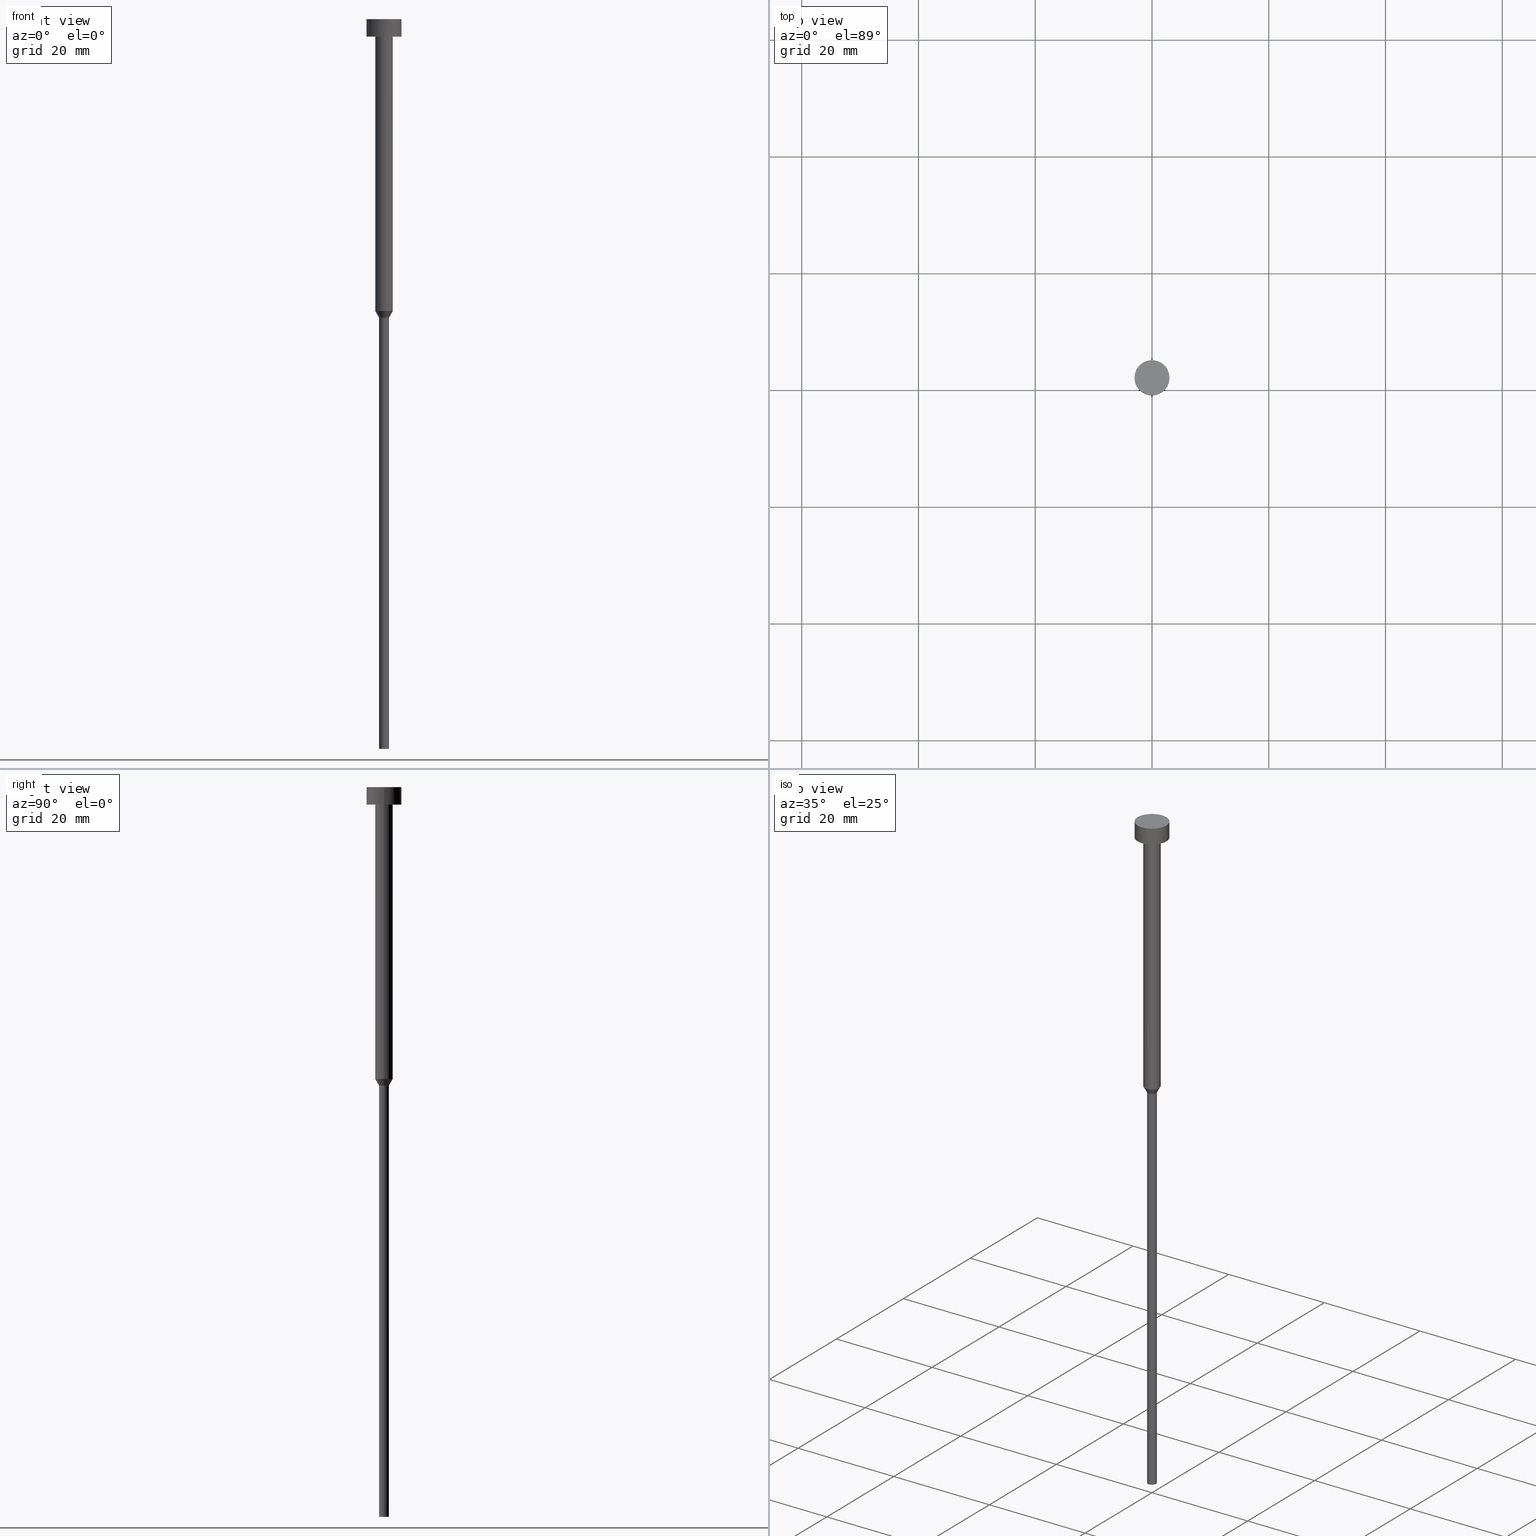
[diagram: canonical four-view strip — front | top / right | iso, engineering-drawing reading convention]
A machine part, canonical four-view strip (front | top / right | iso — engineering-drawing reading convention). The complete STEP part file that produces these views, byte-faithful:
ISO-10303-21;
HEADER;
FILE_DESCRIPTION (( 'STEP AP203' ),
    '1' );
FILE_NAME ('d2de.STEP',
    '2023-02-13T10:04:29',
    ( '' ),
    ( '' ),
    'SwSTEP 2.0',
    'SolidWorks 2019',
    '' );
FILE_SCHEMA (( 'CONFIG_CONTROL_DESIGN' ));
ENDSEC;

DATA;
#1 = CYLINDRICAL_SURFACE ( 'NONE', #160, 0.8499999999999998668 ) ;
#2 = AXIS2_PLACEMENT_3D ( 'NONE', #157, #208, #318 ) ;
#3 = DIRECTION ( 'NONE',  ( -0.000000000000000000, -0.000000000000000000, 1.000000000000000000 ) ) ;
#4 = AXIS2_PLACEMENT_3D ( 'NONE', #237, #82, #186 ) ;
#5 = DIRECTION ( 'NONE',  ( 0.5000000000000011102, 0.000000000000000000, 0.8660254037844379305 ) ) ;
#6 = COORDINATED_UNIVERSAL_TIME_OFFSET ( 1, 0, .AHEAD. ) ;
#7 = MECHANICAL_CONTEXT ( 'NONE', #323, 'mechanical' ) ;
#8 = EDGE_LOOP ( 'NONE', ( #153, #11, #180, #253 ) ) ;
#9 = CONICAL_SURFACE ( 'NONE', #209, 1.500000000000000000, 0.5235987755983001479 ) ;
#10 = PERSON_AND_ORGANIZATION_ROLE ( 'classification_officer' ) ;
#11 = ORIENTED_EDGE ( 'NONE', *, *, #79, .T. ) ;
#12 = ADVANCED_FACE ( 'NONE', ( #98 ), #227, .T. ) ;
#13 = CALENDAR_DATE ( 2023, 13, 2 ) ;
#14 = ORIENTED_EDGE ( 'NONE', *, *, #345, .T. ) ;
#15 = APPROVAL_STATUS ( 'not_yet_approved' ) ;
#16 = VERTEX_POINT ( 'NONE', #311 ) ;
#17 = EDGE_LOOP ( 'NONE', ( #65, #251 ) ) ;
#18 = EDGE_CURVE ( 'NONE', #199, #284, #347, .T. ) ;
#19 = CYLINDRICAL_SURFACE ( 'NONE', #165, 1.500000000000000000 ) ;
#20 = FACE_OUTER_BOUND ( 'NONE', #148, .T. ) ;
#21 = VECTOR ( 'NONE', #5, 1000.000000000000114 ) ;
#22 = CARTESIAN_POINT ( 'NONE',  ( 0.8499999999999998668, 0.000000000000000000, 0.000000000000000000 ) ) ;
#23 = PERSON ( 'NEUR�EN�', 'NEUR�EN�', 'NEUR�EN�', ('NEUR�EN�'), ('NEUR�EN�'), ('NEUR�EN�') ) ;
#24 = PLANE ( 'NONE',  #328 ) ;
#25 = DESIGN_CONTEXT ( 'detailed design', #85, 'design' ) ;
#26 = DIRECTION ( 'NONE',  ( -0.000000000000000000, -0.000000000000000000, 1.000000000000000000 ) ) ;
#27 = CLOSED_SHELL ( 'NONE', ( #104, #167, #112, #235, #12, #316, #215, #41, #306, #67, #181 ) ) ;
#28 = LOCAL_TIME ( 11, 4, 29.00000000000000000, #175 ) ;
#29 = CARTESIAN_POINT ( 'NONE',  ( 0.000000000000000000, 0.000000000000000000, -50.00000000000000000 ) ) ;
#30 = EDGE_CURVE ( 'NONE', #71, #230, #346, .T. ) ;
#31 = FACE_OUTER_BOUND ( 'NONE', #45, .T. ) ;
#32 = LINE ( 'NONE', #166, #194 ) ;
#33 = CIRCLE ( 'NONE', #242, 3.000000000000000000 ) ;
#34 = CARTESIAN_POINT ( 'NONE',  ( 1.500000000000000000, 0.000000000000000000, -50.00000000000000000 ) ) ;
#35 = AXIS2_PLACEMENT_3D ( 'NONE', #161, #26, #297 ) ;
#36 = DATE_AND_TIME ( #126, #287 ) ;
#37 = ORIENTED_EDGE ( 'NONE', *, *, #79, .F. ) ;
#38 = PERSON_AND_ORGANIZATION ( #23, #147 ) ;
#39 = VERTEX_POINT ( 'NONE', #207 ) ;
#40 =( GEOMETRIC_REPRESENTATION_CONTEXT ( 3 ) GLOBAL_UNCERTAINTY_ASSIGNED_CONTEXT ( ( #220 ) ) GLOBAL_UNIT_ASSIGNED_CONTEXT ( ( #168, #243, #324 ) ) REPRESENTATION_CONTEXT ( 'NONE', 'WORKASPACE' ) );
#41 = ADVANCED_FACE ( 'NONE', ( #53 ), #213, .T. ) ;
#42 = ORIENTED_EDGE ( 'NONE', *, *, #224, .T. ) ;
#43 = ORIENTED_EDGE ( 'NONE', *, *, #30, .T. ) ;
#44 = CC_DESIGN_PERSON_AND_ORGANIZATION_ASSIGNMENT ( #38, #143, ( #331 ) ) ;
#45 = EDGE_LOOP ( 'NONE', ( #74, #94, #43, #264 ) ) ;
#46 = AXIS2_PLACEMENT_3D ( 'NONE', #163, #133, #238 ) ;
#47 = CC_DESIGN_SECURITY_CLASSIFICATION ( #351, ( #88 ) ) ;
#48 = CARTESIAN_POINT ( 'NONE',  ( 3.000000000000000000, 0.000000000000000000, -3.000000000000000888 ) ) ;
#49 = CARTESIAN_POINT ( 'NONE',  ( 0.000000000000000000, 0.000000000000000000, -3.000000000000000888 ) ) ;
#50 = FACE_OUTER_BOUND ( 'NONE', #8, .T. ) ;
#51 = CIRCLE ( 'NONE', #247, 0.8499999999999998668 ) ;
#52 = VECTOR ( 'NONE', #137, 1000.000000000000114 ) ;
#53 = FACE_OUTER_BOUND ( 'NONE', #201, .T. ) ;
#54 = CARTESIAN_POINT ( 'NONE',  ( 0.000000000000000000, 0.000000000000000000, -50.00000000000000000 ) ) ;
#55 = EDGE_CURVE ( 'NONE', #279, #101, #241, .T. ) ;
#56 = DIRECTION ( 'NONE',  ( 1.000000000000000000, 0.000000000000000000, 0.000000000000000000 ) ) ;
#57 = AXIS2_PLACEMENT_3D ( 'NONE', #54, #185, #210 ) ;
#58 = AXIS2_PLACEMENT_3D ( 'NONE', #164, #354, #190 ) ;
#59 = CARTESIAN_POINT ( 'NONE',  ( -1.500000000000000000, 1.836970198721029934E-16, -3.000000000000000888 ) ) ;
#60 = CARTESIAN_POINT ( 'NONE',  ( -3.000000000000000000, 3.673940397442059868E-16, -3.673940397442059868E-16 ) ) ;
#61 = ORIENTED_EDGE ( 'NONE', *, *, #228, .T. ) ;
#62 = DIRECTION ( 'NONE',  ( -0.000000000000000000, -0.000000000000000000, 1.000000000000000000 ) ) ;
#63 = AXIS2_PLACEMENT_3D ( 'NONE', #78, #236, #182 ) ;
#64 = PERSON_AND_ORGANIZATION_ROLE ( 'design_owner' ) ;
#65 = ORIENTED_EDGE ( 'NONE', *, *, #228, .F. ) ;
#66 = APPROVAL_DATE_TIME ( #308, #263 ) ;
#67 = ADVANCED_FACE ( 'NONE', ( #110 ), #266, .T. ) ;
#68 = ORIENTED_EDGE ( 'NONE', *, *, #162, .T. ) ;
#69 = ADVANCED_BREP_SHAPE_REPRESENTATION ( 'd2de', ( #250, #107 ), #40 ) ;
#70 = COORDINATED_UNIVERSAL_TIME_OFFSET ( 1, 0, .AHEAD. ) ;
#71 = VERTEX_POINT ( 'NONE', #136 ) ;
#72 = LOCAL_TIME ( 11, 4, 29.00000000000000000, #290 ) ;
#73 = EDGE_LOOP ( 'NONE', ( #61, #152, #205, #232 ) ) ;
#74 = ORIENTED_EDGE ( 'NONE', *, *, #55, .F. ) ;
#75 = DIRECTION ( 'NONE',  ( 0.000000000000000000, -0.000000000000000000, 1.000000000000000000 ) ) ;
#76 = VECTOR ( 'NONE', #319, 1000.000000000000000 ) ;
#77 = LINE ( 'NONE', #294, #274 ) ;
#78 = CARTESIAN_POINT ( 'NONE',  ( 0.000000000000000000, 0.000000000000000000, -51.12583302491977122 ) ) ;
#79 = EDGE_CURVE ( 'NONE', #16, #313, #77, .T. ) ;
#80 = DIRECTION ( 'NONE',  ( -0.000000000000000000, -0.000000000000000000, 1.000000000000000000 ) ) ;
#81 = CIRCLE ( 'NONE', #176, 0.8499999999999998668 ) ;
#82 = DIRECTION ( 'NONE',  ( -0.000000000000000000, -0.000000000000000000, 1.000000000000000000 ) ) ;
#83 = PRODUCT_RELATED_PRODUCT_CATEGORY ( 'detail', '', ( #268 ) ) ;
#84 = CARTESIAN_POINT ( 'NONE',  ( -0.8499999999999998668, 1.040949779275250017E-16, -125.0000000000000000 ) ) ;
#85 = APPLICATION_CONTEXT ( 'configuration controlled 3d designs of mechanical parts and assemblies' ) ;
#86 = DIRECTION ( 'NONE',  ( -0.000000000000000000, -0.000000000000000000, 1.000000000000000000 ) ) ;
#87 = AXIS2_PLACEMENT_3D ( 'NONE', #335, #96, #337 ) ;
#88 = PRODUCT_DEFINITION_FORMATION_WITH_SPECIFIED_SOURCE ( 'LIBOVOLN�', '', #268, .NOT_KNOWN. ) ;
#89 = CARTESIAN_POINT ( 'NONE',  ( 0.000000000000000000, -3.000000000000000000, -3.000000000000000888 ) ) ;
#90 = ORIENTED_EDGE ( 'NONE', *, *, #18, .T. ) ;
#91 = APPROVAL ( #97, 'NEUR�EN�' ) ;
#92 = CARTESIAN_POINT ( 'NONE',  ( 1.500000000000000000, 0.000000000000000000, -3.000000000000000888 ) ) ;
#93 = ORIENTED_EDGE ( 'NONE', *, *, #95, .T. ) ;
#94 = ORIENTED_EDGE ( 'NONE', *, *, #119, .T. ) ;
#95 = EDGE_CURVE ( 'NONE', #170, #39, #225, .T. ) ;
#96 = DIRECTION ( 'NONE',  ( 0.000000000000000000, 0.000000000000000000, -1.000000000000000000 ) ) ;
#97 = APPROVAL_STATUS ( 'not_yet_approved' ) ;
#98 = FACE_OUTER_BOUND ( 'NONE', #17, .T. ) ;
#99 = SHAPE_DEFINITION_REPRESENTATION ( #211, #69 ) ;
#100 = VECTOR ( 'NONE', #183, 1000.000000000000000 ) ;
#101 = VERTEX_POINT ( 'NONE', #349 ) ;
#102 = APPROVAL_DATE_TIME ( #342, #91 ) ;
#103 = ORIENTED_EDGE ( 'NONE', *, *, #224, .F. ) ;
#104 = ADVANCED_FACE ( 'NONE', ( #20 ), #111, .T. ) ;
#105 = DIRECTION ( 'NONE',  ( -0.000000000000000000, -0.000000000000000000, 1.000000000000000000 ) ) ;
#106 = FACE_OUTER_BOUND ( 'NONE', #179, .T. ) ;
#107 = AXIS2_PLACEMENT_3D ( 'NONE', #252, #198, #151 ) ;
#108 = EDGE_CURVE ( 'NONE', #39, #170, #33, .T. ) ;
#109 = DIRECTION ( 'NONE',  ( 1.000000000000000000, 0.000000000000000000, 0.000000000000000000 ) ) ;
#110 = FACE_OUTER_BOUND ( 'NONE', #223, .T. ) ;
#111 = CYLINDRICAL_SURFACE ( 'NONE', #46, 3.000000000000000000 ) ;
#112 = ADVANCED_FACE ( 'NONE', ( #106 ), #120, .T. ) ;
#113 = DIRECTION ( 'NONE',  ( 1.000000000000000000, 0.000000000000000000, 0.000000000000000000 ) ) ;
#114 = CYLINDRICAL_SURFACE ( 'NONE', #353, 0.8499999999999998668 ) ;
#115 = CIRCLE ( 'NONE', #312, 0.8499999999999998668 ) ;
#116 = EDGE_CURVE ( 'NONE', #39, #284, #184, .T. ) ;
#117 = CARTESIAN_POINT ( 'NONE',  ( 1.500000000000000000, 0.000000000000000000, -50.00000000000000000 ) ) ;
#118 = CARTESIAN_POINT ( 'NONE',  ( 3.000000000000000000, 0.000000000000000000, -3.673940397442059868E-16 ) ) ;
#119 = EDGE_CURVE ( 'NONE', #279, #71, #51, .T. ) ;
#120 = CONICAL_SURFACE ( 'NONE', #4, 1.500000000000000000, 0.5235987755983001479 ) ;
#121 = APPLICATION_PROTOCOL_DEFINITION ( 'international standard', 'config_control_design', 1994, #85 ) ;
#122 = ORIENTED_EDGE ( 'NONE', *, *, #322, .T. ) ;
#123 = ORIENTED_EDGE ( 'NONE', *, *, #187, .T. ) ;
#124 = PERSON_AND_ORGANIZATION ( #23, #147 ) ;
#125 = ORIENTED_EDGE ( 'NONE', *, *, #345, .F. ) ;
#126 = CALENDAR_DATE ( 2023, 13, 2 ) ;
#127 = CC_DESIGN_DATE_AND_TIME_ASSIGNMENT ( #258, #229, ( #331 ) ) ;
#128 = DIRECTION ( 'NONE',  ( -0.000000000000000000, -0.000000000000000000, 1.000000000000000000 ) ) ;
#129 = CIRCLE ( 'NONE', #195, 1.500000000000000000 ) ;
#130 = ORIENTED_EDGE ( 'NONE', *, *, #322, .F. ) ;
#131 = CARTESIAN_POINT ( 'NONE',  ( 0.000000000000000000, 0.000000000000000000, -51.12583302491977122 ) ) ;
#132 = VECTOR ( 'NONE', #240, 1000.000000000000000 ) ;
#133 = DIRECTION ( 'NONE',  ( -0.000000000000000000, -0.000000000000000000, 1.000000000000000000 ) ) ;
#134 = CC_DESIGN_APPROVAL ( #326, ( #88 ) ) ;
#135 = CARTESIAN_POINT ( 'NONE',  ( 0.000000000000000000, 0.000000000000000000, 0.000000000000000000 ) ) ;
#136 = CARTESIAN_POINT ( 'NONE',  ( 0.8499999999999998668, 0.000000000000000000, -125.0000000000000000 ) ) ;
#137 = DIRECTION ( 'NONE',  ( -0.5000000000000011102, 6.123233995736779594E-17, 0.8660254037844379305 ) ) ;
#138 = DIRECTION ( 'NONE',  ( 1.000000000000000000, 0.000000000000000000, 0.000000000000000000 ) ) ;
#139 = CARTESIAN_POINT ( 'NONE',  ( -1.500000000000000000, 1.836970198721029934E-16, -50.00000000000000000 ) ) ;
#140 = CIRCLE ( 'NONE', #63, 0.8499999999999998668 ) ;
#141 = AXIS2_PLACEMENT_3D ( 'NONE', #29, #192, #138 ) ;
#142 = DIRECTION ( 'NONE',  ( -0.000000000000000000, -0.000000000000000000, 1.000000000000000000 ) ) ;
#143 = PERSON_AND_ORGANIZATION_ROLE ( 'creator' ) ;
#144 = CC_DESIGN_PERSON_AND_ORGANIZATION_ASSIGNMENT ( #256, #10, ( #351 ) ) ;
#145 = PERSON_AND_ORGANIZATION_ROLE ( 'design_supplier' ) ;
#146 = ORIENTED_EDGE ( 'NONE', *, *, #108, .T. ) ;
#147 = ORGANIZATION ( 'NEUR�EN�', 'NEUR�EN�', '' ) ;
#148 = EDGE_LOOP ( 'NONE', ( #93, #314, #261, #103 ) ) ;
#149 = ORIENTED_EDGE ( 'NONE', *, *, #116, .F. ) ;
#150 = EDGE_CURVE ( 'NONE', #197, #16, #296, .T. ) ;
#151 = DIRECTION ( 'NONE',  ( 1.000000000000000000, 0.000000000000000000, 0.000000000000000000 ) ) ;
#152 = ORIENTED_EDGE ( 'NONE', *, *, #55, .T. ) ;
#153 = ORIENTED_EDGE ( 'NONE', *, *, #150, .T. ) ;
#154 = AXIS2_PLACEMENT_3D ( 'NONE', #89, #300, #278 ) ;
#155 = DIRECTION ( 'NONE',  ( 1.000000000000000000, 0.000000000000000000, 0.000000000000000000 ) ) ;
#156 = EDGE_CURVE ( 'NONE', #230, #101, #140, .T. ) ;
#157 = CARTESIAN_POINT ( 'NONE',  ( 0.000000000000000000, 0.000000000000000000, 0.000000000000000000 ) ) ;
#158 = AXIS2_PLACEMENT_3D ( 'NONE', #49, #320, #159 ) ;
#159 = DIRECTION ( 'NONE',  ( 1.000000000000000000, 0.000000000000000000, 0.000000000000000000 ) ) ;
#160 = AXIS2_PLACEMENT_3D ( 'NONE', #248, #62, #246 ) ;
#161 = CARTESIAN_POINT ( 'NONE',  ( 0.000000000000000000, 0.000000000000000000, -3.000000000000000888 ) ) ;
#162 = EDGE_CURVE ( 'NONE', #332, #313, #302, .T. ) ;
#163 = CARTESIAN_POINT ( 'NONE',  ( 0.000000000000000000, 0.000000000000000000, 0.000000000000000000 ) ) ;
#164 = CARTESIAN_POINT ( 'NONE',  ( 0.000000000000000000, 0.000000000000000000, -3.673940397442059868E-16 ) ) ;
#165 = AXIS2_PLACEMENT_3D ( 'NONE', #273, #344, #269 ) ;
#166 = CARTESIAN_POINT ( 'NONE',  ( 3.000000000000000000, 0.000000000000000000, 0.000000000000000000 ) ) ;
#167 = ADVANCED_FACE ( 'NONE', ( #50 ), #19, .T. ) ;
#168 =( LENGTH_UNIT ( ) NAMED_UNIT ( * ) SI_UNIT ( .MILLI., .METRE. ) );
#169 = DIRECTION ( 'NONE',  ( -0.000000000000000000, -0.000000000000000000, 1.000000000000000000 ) ) ;
#170 = VERTEX_POINT ( 'NONE', #48 ) ;
#171 = PERSON_AND_ORGANIZATION ( #23, #147 ) ;
#172 = EDGE_LOOP ( 'NONE', ( #174, #292 ) ) ;
#173 = APPROVAL_DATE_TIME ( #36, #326 ) ;
#174 = ORIENTED_EDGE ( 'NONE', *, *, #95, .F. ) ;
#175 = COORDINATED_UNIVERSAL_TIME_OFFSET ( 1, 0, .AHEAD. ) ;
#176 = AXIS2_PLACEMENT_3D ( 'NONE', #276, #304, #244 ) ;
#177 = CARTESIAN_POINT ( 'NONE',  ( 0.000000000000000000, 0.000000000000000000, -3.673940397442059868E-16 ) ) ;
#178 = PERSON_AND_ORGANIZATION_ROLE ( 'creator' ) ;
#179 = EDGE_LOOP ( 'NONE', ( #281, #257, #307, #130 ) ) ;
#180 = ORIENTED_EDGE ( 'NONE', *, *, #162, .F. ) ;
#181 = ADVANCED_FACE ( 'NONE', ( #315 ), #24, .T. ) ;
#182 = DIRECTION ( 'NONE',  ( 1.000000000000000000, 0.000000000000000000, 0.000000000000000000 ) ) ;
#183 = DIRECTION ( 'NONE',  ( -0.000000000000000000, -0.000000000000000000, 1.000000000000000000 ) ) ;
#184 = LINE ( 'NONE', #212, #76 ) ;
#185 = DIRECTION ( 'NONE',  ( -0.000000000000000000, -0.000000000000000000, 1.000000000000000000 ) ) ;
#186 = DIRECTION ( 'NONE',  ( 1.000000000000000000, 0.000000000000000000, 0.000000000000000000 ) ) ;
#187 = EDGE_CURVE ( 'NONE', #101, #230, #115, .T. ) ;
#188 = LINE ( 'NONE', #34, #21 ) ;
#189 = VECTOR ( 'NONE', #169, 1000.000000000000000 ) ;
#190 = DIRECTION ( 'NONE',  ( 1.000000000000000000, 0.000000000000000000, 0.000000000000000000 ) ) ;
#191 = ORIENTED_EDGE ( 'NONE', *, *, #283, .F. ) ;
#192 = DIRECTION ( 'NONE',  ( -0.000000000000000000, -0.000000000000000000, 1.000000000000000000 ) ) ;
#193 = AXIS2_PLACEMENT_3D ( 'NONE', #177, #128, #234 ) ;
#194 = VECTOR ( 'NONE', #214, 1000.000000000000000 ) ;
#195 = AXIS2_PLACEMENT_3D ( 'NONE', #305, #325, #327 ) ;
#196 = APPLICATION_PROTOCOL_DEFINITION ( 'international standard', 'config_control_design', 1994, #323 ) ;
#197 = VERTEX_POINT ( 'NONE', #117 ) ;
#198 = DIRECTION ( 'NONE',  ( 0.000000000000000000, 0.000000000000000000, 1.000000000000000000 ) ) ;
#199 = VERTEX_POINT ( 'NONE', #118 ) ;
#200 = APPROVAL_ROLE ( '' ) ;
#201 = EDGE_LOOP ( 'NONE', ( #37, #14, #289, #309 ) ) ;
#202 = DATE_TIME_ROLE ( 'classification_date' ) ;
#203 = EDGE_LOOP ( 'NONE', ( #191, #123, #122, #125 ) ) ;
#204 = DATE_AND_TIME ( #336, #72 ) ;
#205 = ORIENTED_EDGE ( 'NONE', *, *, #156, .F. ) ;
#206 = CC_DESIGN_PERSON_AND_ORGANIZATION_ASSIGNMENT ( #124, #145, ( #88 ) ) ;
#207 = CARTESIAN_POINT ( 'NONE',  ( -3.000000000000000000, 3.673940397442059868E-16, -3.000000000000000888 ) ) ;
#208 = DIRECTION ( 'NONE',  ( -0.000000000000000000, -0.000000000000000000, 1.000000000000000000 ) ) ;
#209 = AXIS2_PLACEMENT_3D ( 'NONE', #245, #142, #113 ) ;
#210 = DIRECTION ( 'NONE',  ( 1.000000000000000000, 0.000000000000000000, 0.000000000000000000 ) ) ;
#211 = PRODUCT_DEFINITION_SHAPE ( 'NONE', 'NONE',  #331 ) ;
#212 = CARTESIAN_POINT ( 'NONE',  ( -3.000000000000000000, 3.673940397442059868E-16, 0.000000000000000000 ) ) ;
#213 = CYLINDRICAL_SURFACE ( 'NONE', #218, 1.500000000000000000 ) ;
#214 = DIRECTION ( 'NONE',  ( -0.000000000000000000, -0.000000000000000000, 1.000000000000000000 ) ) ;
#215 = ADVANCED_FACE ( 'NONE', ( #352 ), #9, .T. ) ;
#216 = LINE ( 'NONE', #275, #189 ) ;
#217 = LINE ( 'NONE', #139, #52 ) ;
#218 = AXIS2_PLACEMENT_3D ( 'NONE', #135, #105, #317 ) ;
#219 = APPROVAL_PERSON_ORGANIZATION ( #249, #326, #310 ) ;
#220 = UNCERTAINTY_MEASURE_WITH_UNIT (LENGTH_MEASURE( 1.000000000000000082E-05 ), #168, 'distance_accuracy_value', 'NONE');
#221 = FACE_OUTER_BOUND ( 'NONE', #172, .T. ) ;
#222 = FACE_OUTER_BOUND ( 'NONE', #73, .T. ) ;
#223 = EDGE_LOOP ( 'NONE', ( #149, #146, #42, #286 ) ) ;
#224 = EDGE_CURVE ( 'NONE', #170, #199, #32, .T. ) ;
#225 = CIRCLE ( 'NONE', #158, 3.000000000000000000 ) ;
#226 = APPROVAL_STATUS ( 'not_yet_approved' ) ;
#227 = PLANE ( 'NONE',  #87 ) ;
#228 = EDGE_CURVE ( 'NONE', #71, #279, #81, .T. ) ;
#229 = DATE_TIME_ROLE ( 'creation_date' ) ;
#230 = VERTEX_POINT ( 'NONE', #330 ) ;
#231 = CALENDAR_DATE ( 2023, 13, 2 ) ;
#232 = ORIENTED_EDGE ( 'NONE', *, *, #30, .F. ) ;
#233 = SECURITY_CLASSIFICATION_LEVEL ( 'unclassified' ) ;
#234 = DIRECTION ( 'NONE',  ( 1.000000000000000000, 0.000000000000000000, 0.000000000000000000 ) ) ;
#235 = ADVANCED_FACE ( 'NONE', ( #222 ), #1, .T. ) ;
#236 = DIRECTION ( 'NONE',  ( -0.000000000000000000, -0.000000000000000000, 1.000000000000000000 ) ) ;
#237 = CARTESIAN_POINT ( 'NONE',  ( 0.000000000000000000, 0.000000000000000000, -50.00000000000000000 ) ) ;
#238 = DIRECTION ( 'NONE',  ( 1.000000000000000000, 0.000000000000000000, 0.000000000000000000 ) ) ;
#239 = LOCAL_TIME ( 11, 4, 29.00000000000000000, #334 ) ;
#240 = DIRECTION ( 'NONE',  ( -0.000000000000000000, -0.000000000000000000, 1.000000000000000000 ) ) ;
#241 = LINE ( 'NONE', #265, #132 ) ;
#242 = AXIS2_PLACEMENT_3D ( 'NONE', #348, #293, #109 ) ;
#243 =( NAMED_UNIT ( * ) PLANE_ANGLE_UNIT ( ) SI_UNIT ( $, .RADIAN. ) );
#244 = DIRECTION ( 'NONE',  ( 1.000000000000000000, 0.000000000000000000, 0.000000000000000000 ) ) ;
#245 = CARTESIAN_POINT ( 'NONE',  ( 0.000000000000000000, 0.000000000000000000, -50.00000000000000000 ) ) ;
#246 = DIRECTION ( 'NONE',  ( 1.000000000000000000, 0.000000000000000000, 0.000000000000000000 ) ) ;
#247 = AXIS2_PLACEMENT_3D ( 'NONE', #295, #80, #299 ) ;
#248 = CARTESIAN_POINT ( 'NONE',  ( 0.000000000000000000, 0.000000000000000000, 0.000000000000000000 ) ) ;
#249 = PERSON_AND_ORGANIZATION ( #23, #147 ) ;
#250 = MANIFOLD_SOLID_BREP ( 'Rotovat1', #27 ) ;
#251 = ORIENTED_EDGE ( 'NONE', *, *, #119, .F. ) ;
#252 = CARTESIAN_POINT ( 'NONE',  ( 0.000000000000000000, 0.000000000000000000, 0.000000000000000000 ) ) ;
#253 = ORIENTED_EDGE ( 'NONE', *, *, #303, .F. ) ;
#254 = CC_DESIGN_PERSON_AND_ORGANIZATION_ASSIGNMENT ( #260, #64, ( #268 ) ) ;
#255 = CIRCLE ( 'NONE', #141, 1.500000000000000000 ) ;
#256 = PERSON_AND_ORGANIZATION ( #23, #147 ) ;
#257 = ORIENTED_EDGE ( 'NONE', *, *, #283, .T. ) ;
#258 = DATE_AND_TIME ( #13, #28 ) ;
#259 = EDGE_LOOP ( 'NONE', ( #90, #291 ) ) ;
#260 = PERSON_AND_ORGANIZATION ( #23, #147 ) ;
#261 = ORIENTED_EDGE ( 'NONE', *, *, #18, .F. ) ;
#262 = APPROVAL_PERSON_ORGANIZATION ( #171, #263, #282 ) ;
#263 = APPROVAL ( #226, 'NEUR�EN�' ) ;
#264 = ORIENTED_EDGE ( 'NONE', *, *, #187, .F. ) ;
#265 = CARTESIAN_POINT ( 'NONE',  ( -0.8499999999999998668, 1.040949779275250017E-16, 0.000000000000000000 ) ) ;
#266 = CYLINDRICAL_SURFACE ( 'NONE', #2, 3.000000000000000000 ) ;
#267 = CC_DESIGN_PERSON_AND_ORGANIZATION_ASSIGNMENT ( #285, #178, ( #88 ) ) ;
#268 = PRODUCT ( 'd2de', 'd2de', '', ( #7 ) ) ;
#269 = DIRECTION ( 'NONE',  ( 1.000000000000000000, 0.000000000000000000, 0.000000000000000000 ) ) ;
#270 = APPROVAL_PERSON_ORGANIZATION ( #288, #91, #200 ) ;
#271 = CARTESIAN_POINT ( 'NONE',  ( 0.000000000000000000, 0.000000000000000000, -1.836970198721029934E-16 ) ) ;
#272 = EDGE_CURVE ( 'NONE', #284, #199, #333, .T. ) ;
#273 = CARTESIAN_POINT ( 'NONE',  ( 0.000000000000000000, 0.000000000000000000, 0.000000000000000000 ) ) ;
#274 = VECTOR ( 'NONE', #350, 1000.000000000000000 ) ;
#275 = CARTESIAN_POINT ( 'NONE',  ( 1.500000000000000000, 0.000000000000000000, 0.000000000000000000 ) ) ;
#276 = CARTESIAN_POINT ( 'NONE',  ( 0.000000000000000000, 0.000000000000000000, -125.0000000000000000 ) ) ;
#277 = DIRECTION ( 'NONE',  ( 1.000000000000000000, 0.000000000000000000, 0.000000000000000000 ) ) ;
#278 = DIRECTION ( 'NONE',  ( -1.000000000000000000, 0.000000000000000000, -0.000000000000000000 ) ) ;
#279 = VERTEX_POINT ( 'NONE', #84 ) ;
#280 = FACE_BOUND ( 'NONE', #340, .T. ) ;
#281 = ORIENTED_EDGE ( 'NONE', *, *, #156, .T. ) ;
#282 = APPROVAL_ROLE ( '' ) ;
#283 = EDGE_CURVE ( 'NONE', #101, #16, #217, .T. ) ;
#284 = VERTEX_POINT ( 'NONE', #60 ) ;
#285 = PERSON_AND_ORGANIZATION ( #23, #147 ) ;
#286 = ORIENTED_EDGE ( 'NONE', *, *, #272, .F. ) ;
#287 = LOCAL_TIME ( 11, 4, 29.00000000000000000, #6 ) ;
#288 = PERSON_AND_ORGANIZATION ( #23, #147 ) ;
#289 = ORIENTED_EDGE ( 'NONE', *, *, #303, .T. ) ;
#290 = COORDINATED_UNIVERSAL_TIME_OFFSET ( 1, 0, .AHEAD. ) ;
#291 = ORIENTED_EDGE ( 'NONE', *, *, #272, .T. ) ;
#292 = ORIENTED_EDGE ( 'NONE', *, *, #108, .F. ) ;
#293 = DIRECTION ( 'NONE',  ( -0.000000000000000000, -0.000000000000000000, 1.000000000000000000 ) ) ;
#294 = CARTESIAN_POINT ( 'NONE',  ( -1.500000000000000000, 1.836970198721029934E-16, 0.000000000000000000 ) ) ;
#295 = CARTESIAN_POINT ( 'NONE',  ( 0.000000000000000000, 0.000000000000000000, -125.0000000000000000 ) ) ;
#296 = CIRCLE ( 'NONE', #57, 1.500000000000000000 ) ;
#297 = DIRECTION ( 'NONE',  ( 1.000000000000000000, 0.000000000000000000, 0.000000000000000000 ) ) ;
#298 = LOCAL_TIME ( 11, 4, 29.00000000000000000, #70 ) ;
#299 = DIRECTION ( 'NONE',  ( 1.000000000000000000, 0.000000000000000000, 0.000000000000000000 ) ) ;
#300 = DIRECTION ( 'NONE',  ( 0.000000000000000000, 0.000000000000000000, -1.000000000000000000 ) ) ;
#301 = CARTESIAN_POINT ( 'NONE',  ( 0.000000000000000000, 0.000000000000000000, 0.000000000000000000 ) ) ;
#302 = CIRCLE ( 'NONE', #35, 1.500000000000000000 ) ;
#303 = EDGE_CURVE ( 'NONE', #197, #332, #216, .T. ) ;
#304 = DIRECTION ( 'NONE',  ( -0.000000000000000000, -0.000000000000000000, 1.000000000000000000 ) ) ;
#305 = CARTESIAN_POINT ( 'NONE',  ( 0.000000000000000000, 0.000000000000000000, -3.000000000000000888 ) ) ;
#306 = ADVANCED_FACE ( 'NONE', ( #280, #221 ), #329, .T. ) ;
#307 = ORIENTED_EDGE ( 'NONE', *, *, #150, .F. ) ;
#308 = DATE_AND_TIME ( #338, #239 ) ;
#309 = ORIENTED_EDGE ( 'NONE', *, *, #355, .F. ) ;
#310 = APPROVAL_ROLE ( '' ) ;
#311 = CARTESIAN_POINT ( 'NONE',  ( -1.500000000000000000, 1.836970198721029934E-16, -50.00000000000000000 ) ) ;
#312 = AXIS2_PLACEMENT_3D ( 'NONE', #131, #3, #277 ) ;
#313 = VERTEX_POINT ( 'NONE', #59 ) ;
#314 = ORIENTED_EDGE ( 'NONE', *, *, #116, .T. ) ;
#315 = FACE_OUTER_BOUND ( 'NONE', #259, .T. ) ;
#316 = ADVANCED_FACE ( 'NONE', ( #31 ), #114, .T. ) ;
#317 = DIRECTION ( 'NONE',  ( 1.000000000000000000, 0.000000000000000000, 0.000000000000000000 ) ) ;
#318 = DIRECTION ( 'NONE',  ( 1.000000000000000000, 0.000000000000000000, 0.000000000000000000 ) ) ;
#319 = DIRECTION ( 'NONE',  ( -0.000000000000000000, -0.000000000000000000, 1.000000000000000000 ) ) ;
#320 = DIRECTION ( 'NONE',  ( -0.000000000000000000, -0.000000000000000000, 1.000000000000000000 ) ) ;
#321 = CC_DESIGN_APPROVAL ( #263, ( #331 ) ) ;
#322 = EDGE_CURVE ( 'NONE', #230, #197, #188, .T. ) ;
#323 = APPLICATION_CONTEXT ( 'configuration controlled 3d designs of mechanical parts and assemblies' ) ;
#324 =( NAMED_UNIT ( * ) SI_UNIT ( $, .STERADIAN. ) SOLID_ANGLE_UNIT ( ) );
#325 = DIRECTION ( 'NONE',  ( -0.000000000000000000, -0.000000000000000000, 1.000000000000000000 ) ) ;
#326 = APPROVAL ( #15, 'NEUR�EN�' ) ;
#327 = DIRECTION ( 'NONE',  ( 1.000000000000000000, 0.000000000000000000, 0.000000000000000000 ) ) ;
#328 = AXIS2_PLACEMENT_3D ( 'NONE', #271, #75, #155 ) ;
#329 = PLANE ( 'NONE',  #154 ) ;
#330 = CARTESIAN_POINT ( 'NONE',  ( 0.8499999999999998668, 0.000000000000000000, -51.12583302491977122 ) ) ;
#331 = PRODUCT_DEFINITION ( 'NEZN�M�', '', #88, #25 ) ;
#332 = VERTEX_POINT ( 'NONE', #92 ) ;
#333 = CIRCLE ( 'NONE', #58, 3.000000000000000000 ) ;
#334 = COORDINATED_UNIVERSAL_TIME_OFFSET ( 1, 0, .AHEAD. ) ;
#335 = CARTESIAN_POINT ( 'NONE',  ( 0.000000000000000000, 0.000000000000000000, -125.0000000000000000 ) ) ;
#336 = CALENDAR_DATE ( 2023, 13, 2 ) ;
#337 = DIRECTION ( 'NONE',  ( -1.000000000000000000, 0.000000000000000000, -0.000000000000000000 ) ) ;
#338 = CALENDAR_DATE ( 2023, 13, 2 ) ;
#339 = CC_DESIGN_DATE_AND_TIME_ASSIGNMENT ( #204, #202, ( #351 ) ) ;
#340 = EDGE_LOOP ( 'NONE', ( #68, #343 ) ) ;
#341 = CC_DESIGN_APPROVAL ( #91, ( #351 ) ) ;
#342 = DATE_AND_TIME ( #231, #298 ) ;
#343 = ORIENTED_EDGE ( 'NONE', *, *, #355, .T. ) ;
#344 = DIRECTION ( 'NONE',  ( -0.000000000000000000, -0.000000000000000000, 1.000000000000000000 ) ) ;
#345 = EDGE_CURVE ( 'NONE', #16, #197, #255, .T. ) ;
#346 = LINE ( 'NONE', #22, #100 ) ;
#347 = CIRCLE ( 'NONE', #193, 3.000000000000000000 ) ;
#348 = CARTESIAN_POINT ( 'NONE',  ( 0.000000000000000000, 0.000000000000000000, -3.000000000000000888 ) ) ;
#349 = CARTESIAN_POINT ( 'NONE',  ( -0.8499999999999998668, 1.040949779275250017E-16, -51.12583302491977122 ) ) ;
#350 = DIRECTION ( 'NONE',  ( -0.000000000000000000, -0.000000000000000000, 1.000000000000000000 ) ) ;
#351 = SECURITY_CLASSIFICATION ( '', '', #233 ) ;
#352 = FACE_OUTER_BOUND ( 'NONE', #203, .T. ) ;
#353 = AXIS2_PLACEMENT_3D ( 'NONE', #301, #86, #56 ) ;
#354 = DIRECTION ( 'NONE',  ( -0.000000000000000000, -0.000000000000000000, 1.000000000000000000 ) ) ;
#355 = EDGE_CURVE ( 'NONE', #313, #332, #129, .T. ) ;
ENDSEC;
END-ISO-10303-21;
